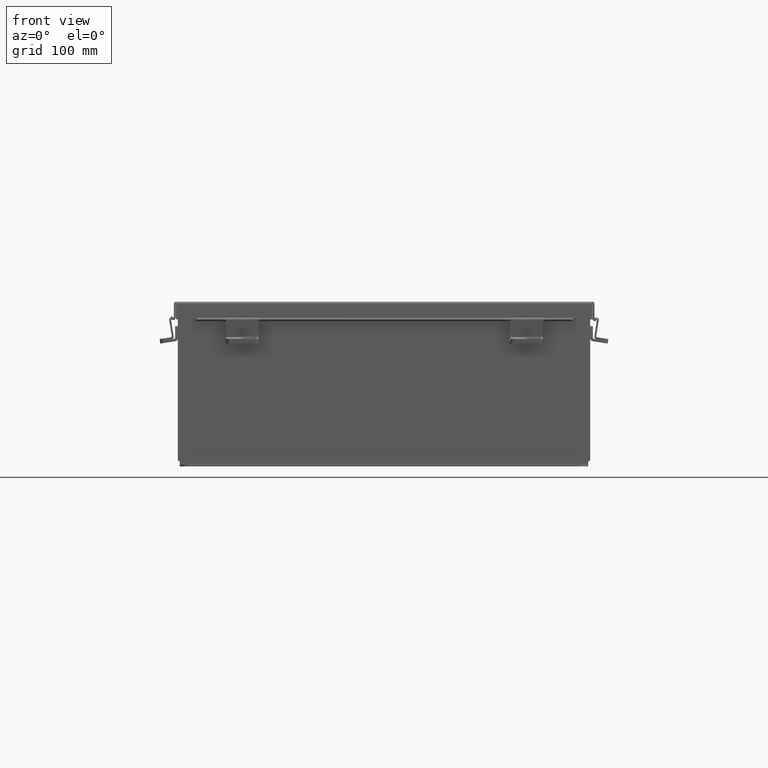
[diagram: clean part render]
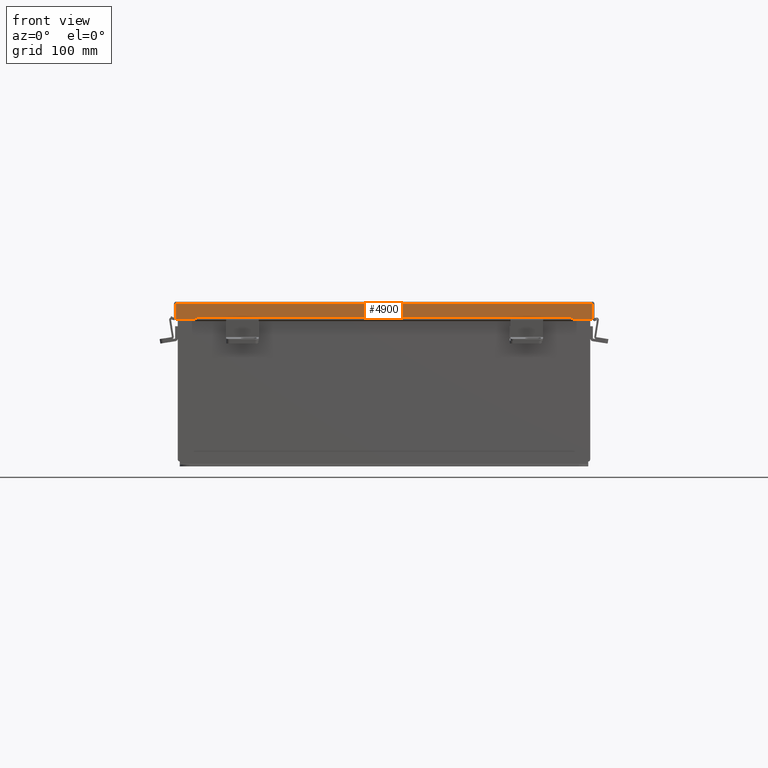
[diagram: same view with one face highlighted and labeled with its STEP entity id]
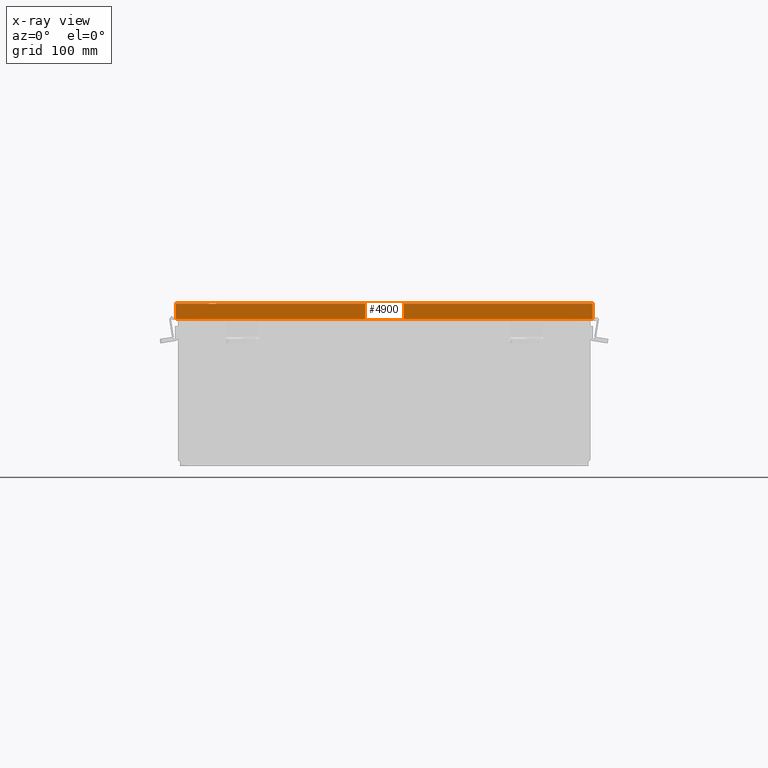
[diagram: x-ray of the same camera — body ghosted, the highlighted face saturated]
A machine part, front view. The second image highlights one B-rep face of the part: STEP entity #4900.
The next image is the same camera in x-ray: the body ghosted, the highlighted face saturated — about 0% of this face is hidden behind the body in this view.
In plain terms, the highlighted planar face has unit normal (0, 1, -0).
Its self-contained STEP definition (entity closure, byte-faithful):
#109 = CARTESIAN_POINT ( 'NONE',  ( 3.201384367575308500E-018, -10.15625000000000200, 0.6123000000000005100 ) ) ;
#184 = CARTESIAN_POINT ( 'NONE',  ( -7.324478932188148100, -10.15625000000000200, 0.6123000000000005100 ) ) ;
#192 = CARTESIAN_POINT ( 'NONE',  ( -8.074478932188169400, -10.15624999999999800, 0.0000000000000000000 ) ) ;
#227 = ORIENTED_EDGE ( 'NONE', *, *, #6591, .T. ) ;
#413 = LINE ( 'NONE', #109, #1103 ) ;
#961 = DIRECTION ( 'NONE',  ( -0.0000000000000000000, -3.569293475308494500E-015, 1.000000000000000000 ) ) ;
#1010 = EDGE_CURVE ( 'NONE', #3598, #8178, #8199, .T. ) ;
#1012 = CARTESIAN_POINT ( 'NONE',  ( -7.324478932188148100, -10.15625000000000400, 0.5967115427318782100 ) ) ;
#1039 = LINE ( 'NONE', #1481, #1162 ) ;
#1103 = VECTOR ( 'NONE', #9253, 39.37007874015748100 ) ;
#1162 = VECTOR ( 'NONE', #7699, 39.37007874015748100 ) ;
#1189 = VERTEX_POINT ( 'NONE', #1444 ) ;
#1241 = ORIENTED_EDGE ( 'NONE', *, *, #3009, .F. ) ;
#1423 = ORIENTED_EDGE ( 'NONE', *, *, #7485, .F. ) ;
#1444 = CARTESIAN_POINT ( 'NONE',  ( 8.074478932188169400, -10.15624999999999800, 0.01300000000000010700 ) ) ;
#1481 = CARTESIAN_POINT ( 'NONE',  ( -7.324478932188148100, -10.15625000000000400, 0.6122999999999982900 ) ) ;
#1500 = CARTESIAN_POINT ( 'NONE',  ( 8.074478932188169400, -10.15624999999999800, -3.606039351636827200E-014 ) ) ;
#1727 = EDGE_CURVE ( 'NONE', #8178, #6638, #6603, .T. ) ;
#1991 = VERTEX_POINT ( 'NONE', #184 ) ;
#2004 = ORIENTED_EDGE ( 'NONE', *, *, #8918, .F. ) ;
#2783 = EDGE_CURVE ( 'NONE', #1189, #7065, #6034, .T. ) ;
#2861 = EDGE_LOOP ( 'NONE', ( #2004, #8745, #1423, #1241, #8644, #227, #6578, #5908 ) ) ;
#2957 = VECTOR ( 'NONE', #4621, 39.37007874015748100 ) ;
#3009 = EDGE_CURVE ( 'NONE', #1189, #4071, #6393, .T. ) ;
#3420 = CARTESIAN_POINT ( 'NONE',  ( 0.0000000000000000000, -10.15624999999999800, -3.606039351636827200E-014 ) ) ;
#3598 = VERTEX_POINT ( 'NONE', #4312 ) ;
#3778 = VECTOR ( 'NONE', #6021, 39.37007874015748100 ) ;
#3990 = LINE ( 'NONE', #5417, #2957 ) ;
#4071 = VERTEX_POINT ( 'NONE', #7869 ) ;
#4312 = CARTESIAN_POINT ( 'NONE',  ( -7.324478932188148100, -10.15625000000000200, 0.5967115427318782100 ) ) ;
#4616 = AXIS2_PLACEMENT_3D ( 'NONE', #3420, #9669, #5604 ) ;
#4621 = DIRECTION ( 'NONE',  ( -1.000000000000000000, -3.216520006922595800E-030, 4.186740220174584600E-018 ) ) ;
#4862 = PLANE ( 'NONE',  #4616 ) ;
#4900 = ADVANCED_FACE ( 'NONE', ( #5371 ), #4862, .F. ) ;
#5184 = VECTOR ( 'NONE', #6802, 39.37007874015748100 ) ;
#5371 = FACE_OUTER_BOUND ( 'NONE', #2861, .T. ) ;
#5391 = VERTEX_POINT ( 'NONE', #5781 ) ;
#5417 = CARTESIAN_POINT ( 'NONE',  ( 3.201384367575308500E-018, -10.15625000000000200, 0.6123000000000005100 ) ) ;
#5604 = DIRECTION ( 'NONE',  ( 0.0000000000000000000, -3.569293475308493700E-015, 1.000000000000000000 ) ) ;
#5754 = CARTESIAN_POINT ( 'NONE',  ( 7.324478932188148100, -10.15625000000000200, 0.5967115427318782100 ) ) ;
#5781 = CARTESIAN_POINT ( 'NONE',  ( -8.074478932188169400, -10.15625000000000200, 0.6123000000000005100 ) ) ;
#5908 = ORIENTED_EDGE ( 'NONE', *, *, #1010, .F. ) ;
#6021 = DIRECTION ( 'NONE',  ( -1.000000000000000000, -3.191323508412550700E-030, -0.0000000000000000000 ) ) ;
#6034 = LINE ( 'NONE', #1500, #8720 ) ;
#6393 = LINE ( 'NONE', #9476, #3778 ) ;
#6445 = DIRECTION ( 'NONE',  ( 0.0000000000000000000, -3.569293475308494500E-015, 1.000000000000000000 ) ) ;
#6578 = ORIENTED_EDGE ( 'NONE', *, *, #1727, .F. ) ;
#6591 = EDGE_CURVE ( 'NONE', #7065, #6638, #3990, .T. ) ;
#6603 = LINE ( 'NONE', #8104, #7056 ) ;
#6638 = VERTEX_POINT ( 'NONE', #7741 ) ;
#6725 = EDGE_CURVE ( 'NONE', #1991, #5391, #413, .T. ) ;
#6802 = DIRECTION ( 'NONE',  ( 1.000000000000000000, 3.215975411700707400E-030, -0.0000000000000000000 ) ) ;
#6828 = CARTESIAN_POINT ( 'NONE',  ( 8.074478932188169400, -10.15625000000000200, 0.6123000000000005100 ) ) ;
#7056 = VECTOR ( 'NONE', #7158, 39.37007874015748100 ) ;
#7065 = VERTEX_POINT ( 'NONE', #6828 ) ;
#7158 = DIRECTION ( 'NONE',  ( 7.009925220120346200E-014, 1.853823127269371600E-029, 1.000000000000000000 ) ) ;
#7410 = LINE ( 'NONE', #192, #8447 ) ;
#7485 = EDGE_CURVE ( 'NONE', #4071, #5391, #7410, .T. ) ;
#7699 = DIRECTION ( 'NONE',  ( 0.0000000000000000000, -1.846427556282924300E-029, -1.000000000000000000 ) ) ;
#7741 = CARTESIAN_POINT ( 'NONE',  ( 7.324478932188149800, -10.15625000000000200, 0.6123000000000005100 ) ) ;
#7869 = CARTESIAN_POINT ( 'NONE',  ( -8.074478932188169400, -10.15624999999999800, 0.01300000000000010700 ) ) ;
#8104 = CARTESIAN_POINT ( 'NONE',  ( 7.324478932188148100, -10.15625000000000400, 0.5967115427318782100 ) ) ;
#8178 = VERTEX_POINT ( 'NONE', #5754 ) ;
#8199 = LINE ( 'NONE', #1012, #5184 ) ;
#8447 = VECTOR ( 'NONE', #961, 39.37007874015748100 ) ;
#8644 = ORIENTED_EDGE ( 'NONE', *, *, #2783, .T. ) ;
#8720 = VECTOR ( 'NONE', #6445, 39.37007874015748100 ) ;
#8745 = ORIENTED_EDGE ( 'NONE', *, *, #6725, .T. ) ;
#8918 = EDGE_CURVE ( 'NONE', #1991, #3598, #1039, .T. ) ;
#9253 = DIRECTION ( 'NONE',  ( -1.000000000000000000, -3.216520006922595800E-030, 4.186740220174584600E-018 ) ) ;
#9476 = CARTESIAN_POINT ( 'NONE',  ( -8.156250000000033800, -10.15624999999999800, 0.01299999999999901400 ) ) ;
#9669 = DIRECTION ( 'NONE',  ( 3.183015112497910400E-030, 1.000000000000000000, 3.569293475308493700E-015 ) ) ;